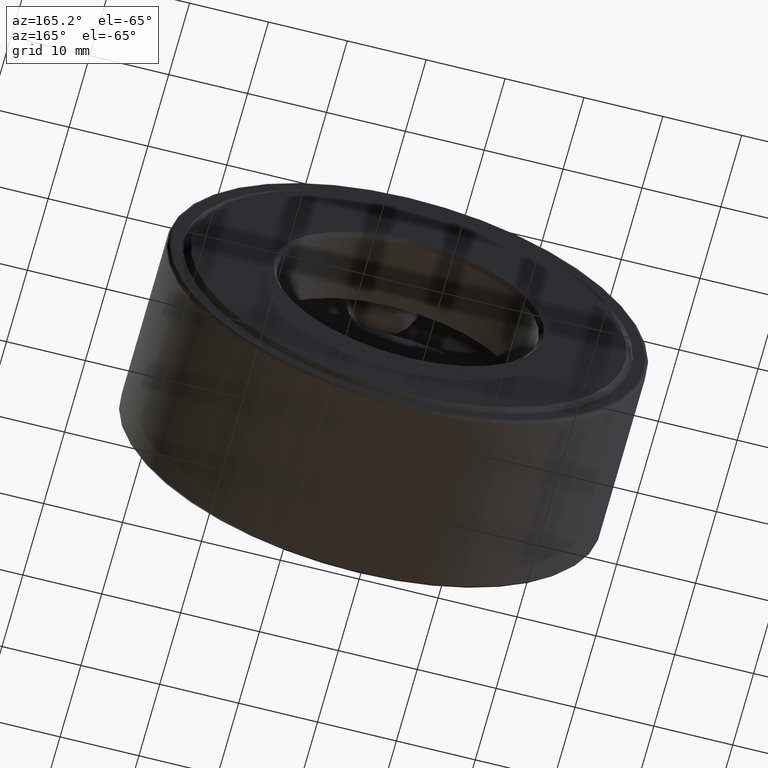
[diagram: clean part render]
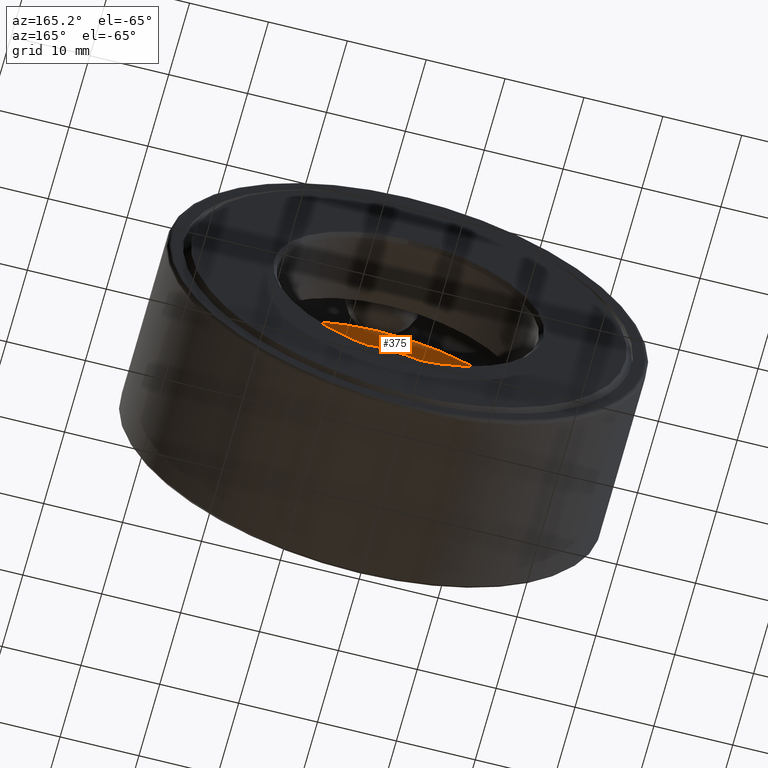
[diagram: same view with one face highlighted and labeled with its STEP entity id]
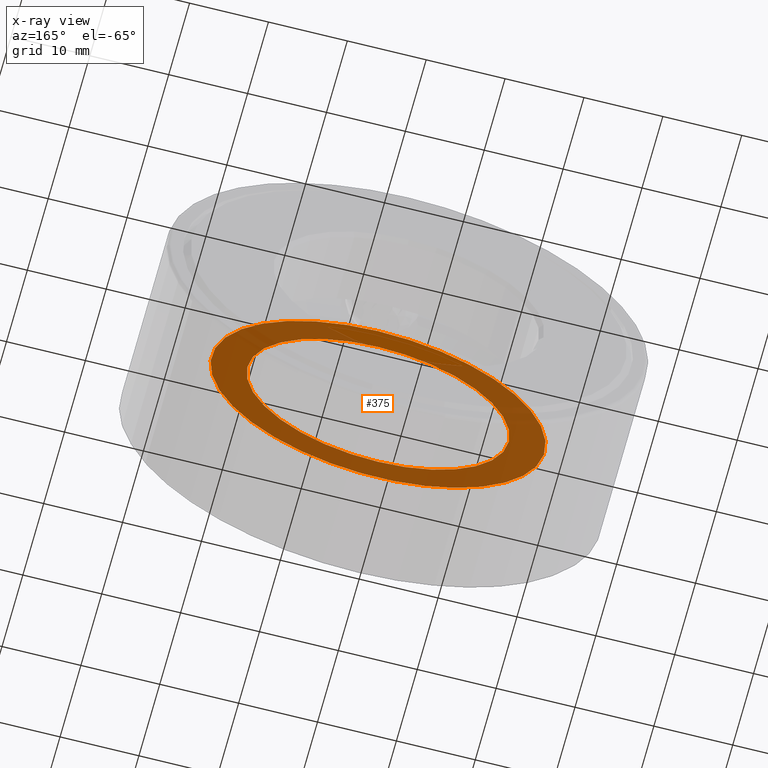
[diagram: x-ray of the same camera — body ghosted, the highlighted face saturated]
A machine part, auxiliary view. The second image highlights one B-rep face of the part: STEP entity #375.
The next image is the same camera in x-ray: the body ghosted, the highlighted face saturated — about 88% of this face is hidden behind the body in this view.
In plain terms, the highlighted planar face has unit normal (0, -1, 0).
Its self-contained STEP definition (entity closure, byte-faithful):
#35 = DIRECTION ( 'NONE',  ( -0.0000000000000000000, 1.000000000000000000, -0.0000000000000000000 ) ) ;
#66 = ORIENTED_EDGE ( 'NONE', *, *, #81, .T. ) ;
#77 = EDGE_LOOP ( 'NONE', ( #66 ) ) ;
#81 = EDGE_CURVE ( 'NONE', #540, #540, #242, .T. ) ;
#98 = FACE_OUTER_BOUND ( 'NONE', #77, .T. ) ;
#133 = DIRECTION ( 'NONE',  ( 0.0000000000000000000, 0.0000000000000000000, 1.000000000000000000 ) ) ;
#143 = DIRECTION ( 'NONE',  ( -0.0000000000000000000, 1.000000000000000000, -0.0000000000000000000 ) ) ;
#156 = CARTESIAN_POINT ( 'NONE',  ( 0.0000000000000000000, 0.3562500000000000700, 0.6562500000000001100 ) ) ;
#173 = CARTESIAN_POINT ( 'NONE',  ( 0.0000000000000000000, 0.3562500000000000700, 0.0000000000000000000 ) ) ;
#200 = FACE_BOUND ( 'NONE', #322, .T. ) ;
#233 = CARTESIAN_POINT ( 'NONE',  ( 0.0000000000000000000, 0.3562500000000000700, 0.8366249999999999500 ) ) ;
#237 = DIRECTION ( 'NONE',  ( 0.0000000000000000000, 0.0000000000000000000, 1.000000000000000000 ) ) ;
#242 = CIRCLE ( 'NONE', #283, 0.8366249999999999500 ) ;
#269 = CARTESIAN_POINT ( 'NONE',  ( 0.0000000000000000000, 0.3562500000000000700, 0.0000000000000000000 ) ) ;
#283 = AXIS2_PLACEMENT_3D ( 'NONE', #269, #35, #133 ) ;
#288 = AXIS2_PLACEMENT_3D ( 'NONE', #173, #487, #442 ) ;
#322 = EDGE_LOOP ( 'NONE', ( #444 ) ) ;
#326 = VERTEX_POINT ( 'NONE', #156 ) ;
#375 = ADVANCED_FACE ( 'NONE', ( #200, #98 ), #492, .F. ) ;
#428 = AXIS2_PLACEMENT_3D ( 'NONE', #602, #143, #237 ) ;
#442 = DIRECTION ( 'NONE',  ( 0.0000000000000000000, -0.0000000000000000000, -1.000000000000000000 ) ) ;
#444 = ORIENTED_EDGE ( 'NONE', *, *, #478, .F. ) ;
#478 = EDGE_CURVE ( 'NONE', #326, #326, #547, .T. ) ;
#487 = DIRECTION ( 'NONE',  ( 0.0000000000000000000, -1.000000000000000000, 0.0000000000000000000 ) ) ;
#492 = PLANE ( 'NONE',  #288 ) ;
#540 = VERTEX_POINT ( 'NONE', #233 ) ;
#547 = CIRCLE ( 'NONE', #428, 0.6562500000000001100 ) ;
#602 = CARTESIAN_POINT ( 'NONE',  ( 0.0000000000000000000, 0.3562500000000000700, 0.0000000000000000000 ) ) ;